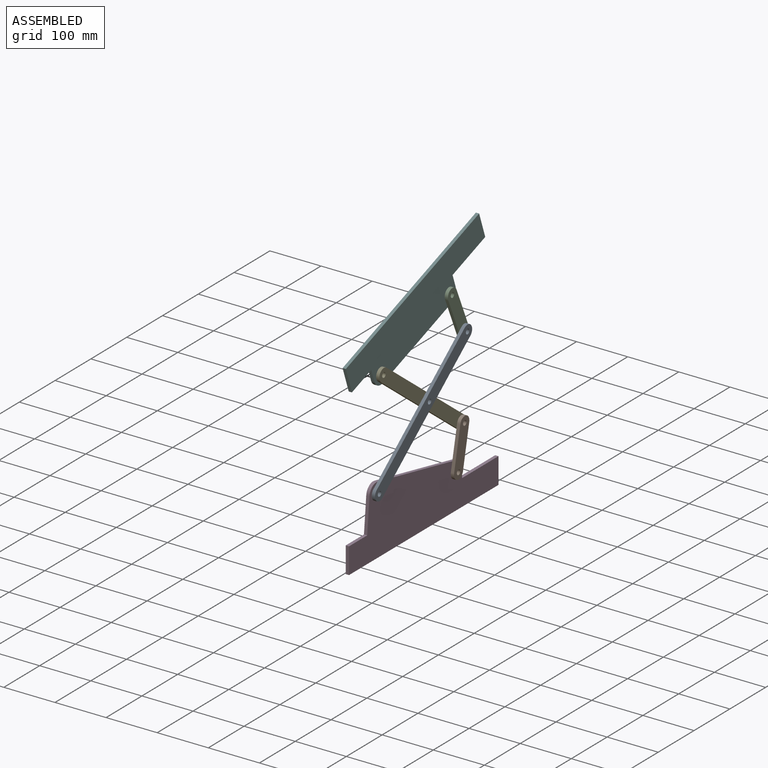
[diagram: assembled view]
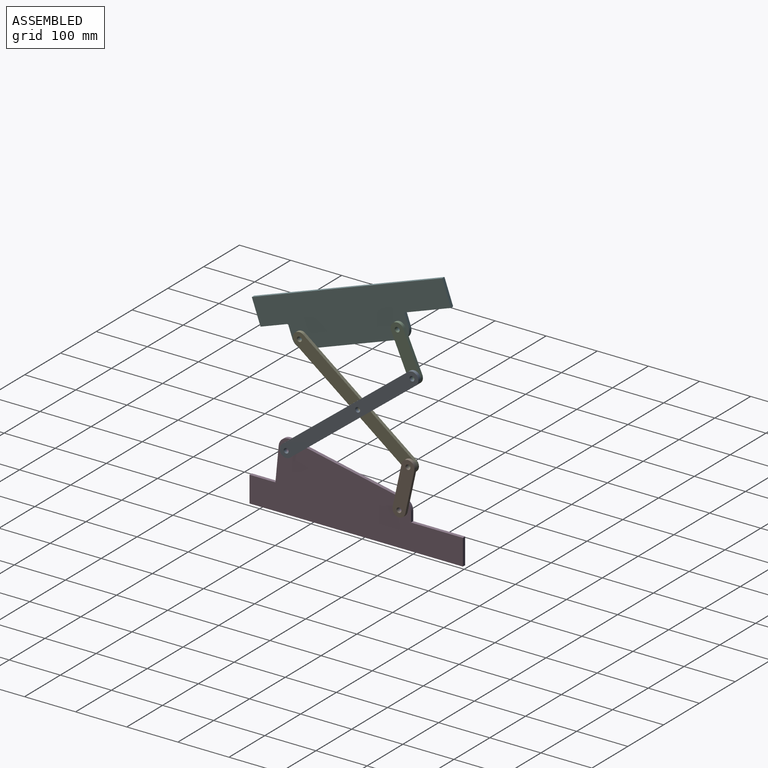
[diagram: assembled view, second angle]
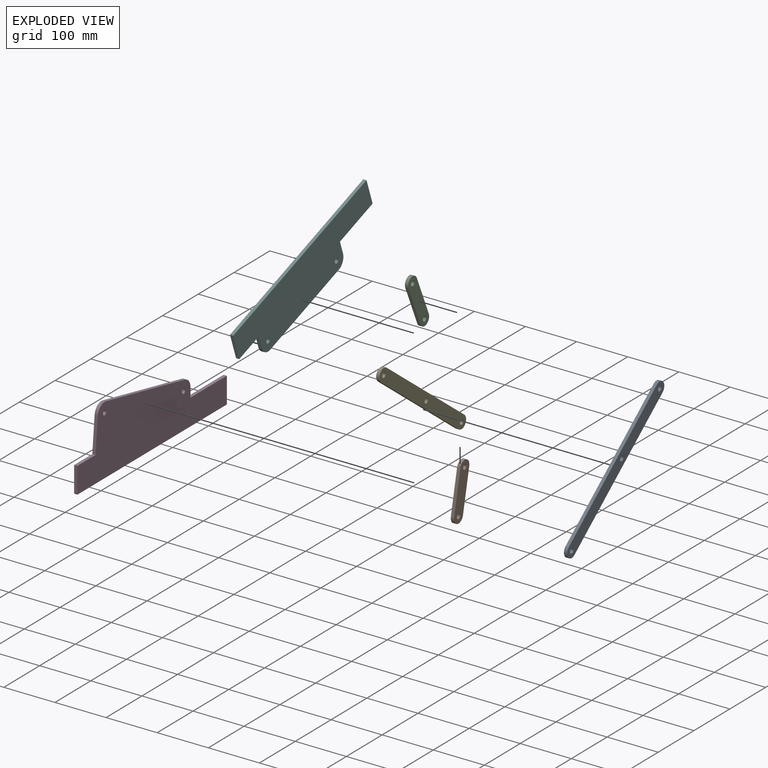
[diagram: exploded view]
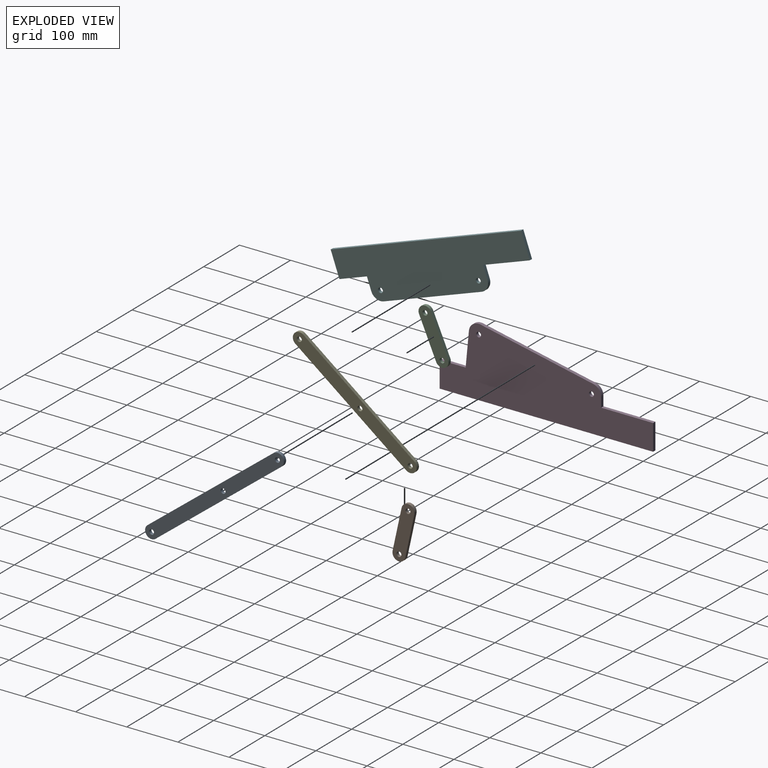
[diagram: exploded view, second angle]
ASSEMBLY  parts=6 mates=7
PART A: 9 faces, bbox 6.4x338.1x25.4 mm
  f0: plane 313.02x6.35mm, normal (0,0,1), area 1987.6mm2, adj f1,f5,f7,f8
  f1: cylinder r=12.7mm len=25.4mm, axis (-1,0,0), area 251.6mm2, adj f0,f2,f7,f8
  f2: plane 312.74x6.35mm, normal (0,0,-1), area 1985.9mm2, adj f1,f5,f7,f8
  f3: cylinder r=4.76mm len=9.53mm, axis (-1,0,0), area 190mm2, adj f7,f8
  f4: cylinder r=4.76mm len=9.53mm, axis (-1,0,0), area 190mm2, adj f7,f8
  f5: cylinder r=12.7mm len=25.4mm, axis (-1,0,0), area 253.4mm2, adj f0,f2,f7,f8
  f6: cylinder r=4.76mm len=9.53mm, axis (-1,0,0), area 190mm2, adj f7,f8
  f7: plane 338.14x25.4mm, normal (1,0,0), area 8236mm2, adj f0,f1,f2,f3,f4,f5,f6
  f8: plane 338.14x25.4mm, normal (-1,0,0), area 8236mm2, adj f0,f1,f2,f3,f4,f5,f6
PART B: 8 faces, bbox 6.4x108x25.4 mm
  f0: plane 82.83x6.35mm, normal (0,0,1), area 526mm2, adj f1,f4,f6,f7
  f1: cylinder r=12.7mm len=25.4mm, axis (-1,0,0), area 251.6mm2, adj f0,f2,f6,f7
  f2: plane 82.55x6.35mm, normal (0,0,-1), area 524.2mm2, adj f1,f4,f6,f7
  f3: cylinder r=4.76mm len=9.53mm, axis (-1,0,0), area 190mm2, adj f6,f7
  f4: cylinder r=12.7mm len=25.4mm, axis (-1,0,0), area 253.4mm2, adj f0,f2,f6,f7
  f5: cylinder r=4.76mm len=9.53mm, axis (-1,0,0), area 190mm2, adj f6,f7
  f6: plane 107.95x25.4mm, normal (1,0,0), area 2460.8mm2, adj f0,f1,f2,f3,f4,f5
  f7: plane 107.95x25.4mm, normal (-1,0,0), area 2460.8mm2, adj f0,f1,f2,f3,f4,f5
PART C: 8 faces, bbox 6.4x108x25.4 mm
  f0: plane 82.83x6.35mm, normal (0,0,1), area 526mm2, adj f1,f4,f6,f7
  f1: cylinder r=12.7mm len=25.4mm, axis (-1,0,0), area 251.6mm2, adj f0,f2,f6,f7
  f2: plane 82.55x6.35mm, normal (0,0,-1), area 524.2mm2, adj f1,f4,f6,f7
  f3: cylinder r=4.76mm len=9.53mm, axis (-1,0,0), area 190mm2, adj f6,f7
  f4: cylinder r=12.7mm len=25.4mm, axis (-1,0,0), area 253.4mm2, adj f0,f2,f6,f7
  f5: cylinder r=4.76mm len=9.53mm, axis (-1,0,0), area 190mm2, adj f6,f7
  f6: plane 107.95x25.4mm, normal (1,0,0), area 2460.8mm2, adj f0,f1,f2,f3,f4,f5
  f7: plane 107.95x25.4mm, normal (-1,0,0), area 2460.8mm2, adj f0,f1,f2,f3,f4,f5
PART D: 14 faces, bbox 6.4x417.5x135 mm
  f0: plane 50.8x6.35mm, normal (0,-1,0), area 322.6mm2, adj f1,f10,f11,f12
  f1: plane 417.51x6.35mm, normal (0,0,-1), area 2651.2mm2, adj f0,f11,f12,f13
  f2: plane 101.6x6.35mm, normal (0,0,1), area 645.2mm2, adj f3,f11,f12,f13
  f3: plane 19.05x6.35mm, normal (0,1,0), area 121mm2, adj f2,f4,f11,f12
  f4: cylinder r=19.05mm len=18.65mm, axis (-1,0,0), area 165.1mm2, adj f3,f5,f11,f12
  f5: plane 220.66x46.1mm, normal (0,0.2,0.98), area 1431.4mm2, adj f4,f6,f11,f12
  f6: cylinder r=19.05mm len=22.86mm, axis (-1,0,0), area 203.3mm2, adj f5,f7,f11,f12
  f7: plane 66.97x6.44mm, normal (0,-1,0.1), area 427.2mm2, adj f6,f10,f11,f12
  f8: cylinder r=4.76mm len=9.53mm, axis (-1,0,0), area 190mm2, adj f11,f12
  f9: cylinder r=4.76mm len=9.53mm, axis (-1,0,0), area 190mm2, adj f11,f12
  f10: plane 50.8x6.35mm, normal (0,0,1), area 322.6mm2, adj f0,f7,f11,f12
  f11: plane 417.51x135mm, normal (1,0,0), area 37034.9mm2, adj f0,f1,f2,f3,f4,f5,f6,f7
  f12: plane 417.51x135mm, normal (-1,0,0), area 37034.9mm2, adj f0,f1,f2,f3,f4,f5,f6,f7
  f13: plane 50.8x6.35mm, normal (0,1,0), area 322.6mm2, adj f1,f2,f11,f12
PART E: 9 faces, bbox 6.4x298.5x25.4 mm
  f0: plane 273.33x6.35mm, normal (0,0,1), area 1735.6mm2, adj f1,f5,f7,f8
  f1: cylinder r=12.7mm len=25.4mm, axis (-1,0,0), area 251.6mm2, adj f0,f2,f7,f8
  f2: plane 273.05x6.35mm, normal (0,0,-1), area 1733.9mm2, adj f1,f5,f7,f8
  f3: cylinder r=4.76mm len=9.53mm, axis (-1,0,0), area 190mm2, adj f7,f8
  f4: cylinder r=4.76mm len=9.53mm, axis (-1,0,0), area 190mm2, adj f7,f8
  f5: cylinder r=12.7mm len=25.4mm, axis (-1,0,0), area 253.4mm2, adj f0,f2,f7,f8
  f6: cylinder r=4.76mm len=9.53mm, axis (-1,0,0), area 190mm2, adj f7,f8
  f7: plane 298.45x25.4mm, normal (1,0,0), area 7228mm2, adj f0,f1,f2,f3,f4,f5,f6
  f8: plane 298.45x25.4mm, normal (-1,0,0), area 7228mm2, adj f0,f1,f2,f3,f4,f5,f6
PART F: 14 faces, bbox 6.4x378.8x225 mm
  f0: plane 22.94x10.92mm, normal (0,-0.9,-0.43), area 161.3mm2, adj f1,f9,f11,f12
  f1: cylinder r=19.05mm len=25.39mm, axis (-1,0,0), area 190mm2, adj f0,f2,f11,f12
  f2: plane 183.48x87.32mm, normal (0,0.43,-0.9), area 1290.3mm2, adj f1,f3,f11,f12
  f3: cylinder r=19.05mm len=25.39mm, axis (-1,0,0), area 190mm2, adj f2,f4,f11,f12
  f4: plane 22.94x10.92mm, normal (0,0.9,0.43), area 161.3mm2, adj f3,f5,f11,f12
  f5: plane 87.48x41.64mm, normal (0,0.43,-0.9), area 615.2mm2, adj f4,f11,f12,f13
  f6: plane 356.97x169.89mm, normal (0,-0.43,0.9), area 2510.4mm2, adj f7,f11,f12,f13
  f7: plane 45.87x21.83mm, normal (0,-0.9,-0.43), area 322.6mm2, adj f6,f9,f11,f12
  f8: cylinder r=4.76mm len=9.53mm, axis (-1,0,0), area 190mm2, adj f11,f12
  f9: plane 51.6x24.56mm, normal (0,0.43,-0.9), area 362.9mm2, adj f0,f7,f11,f12
  f10: cylinder r=4.76mm len=9.53mm, axis (-1,0,0), area 190mm2, adj f11,f12
  f11: plane 378.8x225mm, normal (1,0,0), area 30510.6mm2, adj f0,f1,f2,f3,f4,f5,f6,f7
  f12: plane 378.8x225mm, normal (-1,0,0), area 30510.6mm2, adj f0,f1,f2,f3,f4,f5,f6,f7
  f13: plane 45.87x21.83mm, normal (0,0.9,0.43), area 322.6mm2, adj f5,f6,f11,f12
PLACE A rot(axis=(1,0,0),38.1deg) t=(46.45,-351.96,-175.9)mm
PLACE B rot(axis=(1,0,0),77.7deg) t=(46.45,62.19,-270.62)mm
PLACE C rot(axis=(1,0,0),113.8deg) t=(40.1,509.59,94.69)mm
PLACE D t=(40.1,-136.79,125.91)mm fixed
PLACE E rot(axis=(1,0,0),142.6deg) t=(40.1,649.59,225.22)mm
PLACE F rot(axis=(-1,0,0),5.8deg) t=(33.75,-182.18,152.2)mm
MATE revolute F.f1 <-> E.f5  axis (-1,0,0) through (40.1,-90.06,391.45)mm
MATE revolute E.f1 <-> B.f3  axis (1,0,0) through (46.45,126.86,225.61)mm
MATE revolute C.f1 <-> A.f5  axis (1,0,0) through (46.45,134.65,384.12)mm
MATE revolute F.f3 <-> C.f3  axis (1,0,0) through (40.1,101.35,459.65)mm
MATE revolute A.f4 <-> E.f4  axis (-1,0,0) through (46.45,28.49,300.82)mm
MATE revolute A.f1 <-> D.f6  axis (-1,0,0) through (46.45,-111.39,191.06)mm
MATE revolute D.f4 <-> B.f1  axis (1,0,0) through (46.45,109.27,144.96)mm
